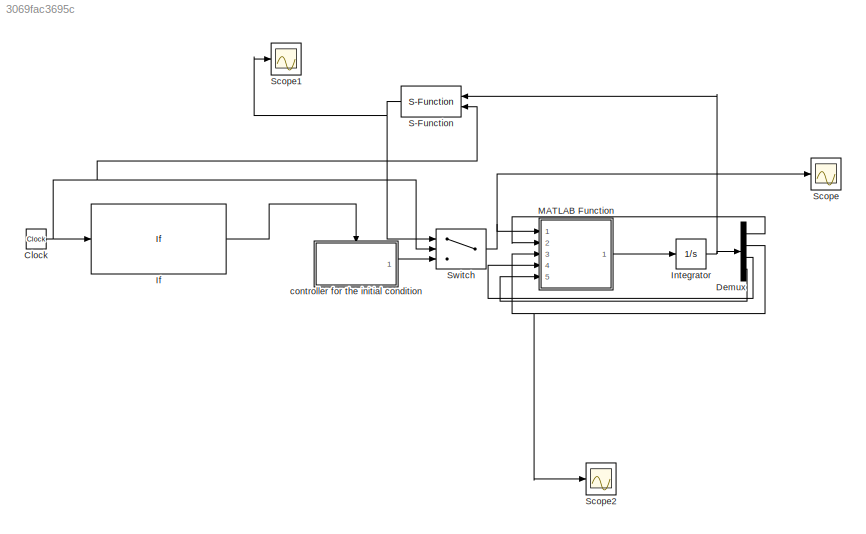
MODEL slx_3069fac3695c
KIND model
CONFIG AbsTol = auto
CONFIG EnableMultiTasking = off
CONFIG FixedStep = 0.01
CONFIG MaxStep = auto
CONFIG MinStep = auto
CONFIG RelTol = 1e-3
CONFIG SampleTimeConstraint = Unconstrained
CONFIG Solver = FixedStepAuto
CONFIG SolverName = FixedStepAuto
CONFIG StartTime = 0.0
CONFIG StopTime = 10
BLOCK [Clock] Clock
  Decimation = 1
BLOCK [Demux] Demux
  Ports = [1, 4]
BLOCK [If] If
  ElseIfExpressions = u1 >= 1 & u1 <2
  IfExpression = u1 < 1
  Ports = [1, 3]
BLOCK [Integrator] Integrator
  Ports = [1, 1]
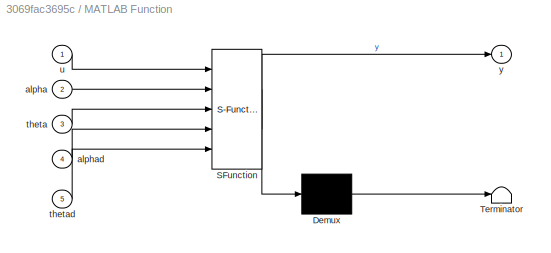
BLOCK [SubSystem] MATLAB Function
  ErrorFcn = Stateflow.Translate.translate
  PermitHierarchicalResolution = ExplicitOnly
  Ports = [5, 1]
  RequestExecContextInheritance = off
  SFBlockType = MATLAB Function
  TreatAsAtomicUnit = on
BLOCK [Demux] MATLAB Function/ Demux 
  Outputs = 1
  Ports = [1, 1]
BLOCK [S-Function] MATLAB Function/ SFunction 
  EnableBusSupport = on
  FunctionName = sf_sfun
  PortCounts = [5 2]
  Ports = [5, 2]
  SFcnIsStateOwnerBlock = off
  SFunctionDeploymentMode = off
  Tag = Stateflow S-Function 2
BLOCK [Terminator] MATLAB Function/ Terminator 
BLOCK [Inport] MATLAB Function/alpha
  Port = 2
BLOCK [Inport] MATLAB Function/alphad
  Port = 4
BLOCK [Inport] MATLAB Function/theta
  Port = 3
BLOCK [Inport] MATLAB Function/thetad
  Port = 5
BLOCK [Inport] MATLAB Function/u
BLOCK [Outport] MATLAB Function/y
BLOCK [S-Function] S-Function
  EnableBusSupport = off
  FunctionName = olcsC
  Ports = [2, 1]
  SFcnIsStateOwnerBlock = off
  SFunctionDeploymentMode = off
BLOCK [Scope] Scope
  Floating = off
  NumInputPorts = 1
  Ports = [1]
  ScopeSpecificationString = Simulink.scopes.TimeScopeBlockCfg('CurrentConfiguration', extmgr.ConfigurationSet(extmgr.Configuration('Core','General UI',true),extmgr.Configuration('Core','Source UI',true),extmgr.Configuration('Sources','WiredSimulink',true),extmgr.Configuration('Visuals','Time Domain',true,'SerializedDisplays',{struct('MinYLimReal','-1.67203','MaxYLimReal','1.29689','YLabelReal','','MinYLimMag','0.00000','MaxY...<+1366ch>
BLOCK [Scope] Scope1
  Floating = off
  NumInputPorts = 1
  Ports = [1]
  ScopeSpecificationString = Simulink.scopes.TimeScopeBlockCfg('CurrentConfiguration', extmgr.ConfigurationSet(extmgr.Configuration('Core','General UI',true),extmgr.Configuration('Core','Source UI',true),extmgr.Configuration('Sources','WiredSimulink',true,'DataLoggingVariableName','ScopeData1'),extmgr.Configuration('Visuals','Time Domain',true,'SerializedDisplays',{struct('MinYLimReal','-1.36269','MaxYLimReal','0.60014','YLab...<+1409ch>
BLOCK [Scope] Scope2
  Floating = off
  NumInputPorts = 1
  Ports = [1]
  ScopeSpecificationString = Simulink.scopes.TimeScopeBlockCfg('CurrentConfiguration', extmgr.ConfigurationSet(extmgr.Configuration('Core','General UI',true),extmgr.Configuration('Core','Source UI',true),extmgr.Configuration('Sources','WiredSimulink',true,'DataLoggingVariableName','ScopeData1'),extmgr.Configuration('Visuals','Time Domain',true,'SerializedDisplays',{struct('MinYLimReal','-0.6102','MaxYLimReal','0.63977','YLabe...<+1433ch>
BLOCK [Switch] Switch
  Criteria = u2 > Threshold
  InputSameDT = off
  SaturateOnIntegerOverflow = off
  Threshold = 2
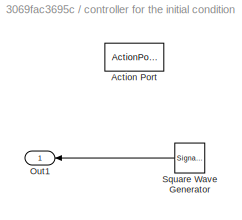
BLOCK [SubSystem] controller for the initial condition
  Ports = [0, 1, 0, 0, 0, 0, 0, 1]
  RequestExecContextInheritance = off
  TreatAsAtomicUnit = on
BLOCK [ActionPort] controller for the initial condition/Action Port
  ActionPortLabel = elseif(u1 >= 1 & u1 <2)
BLOCK [Outport] controller for the initial condition/Out1
BLOCK [SignalGenerator] controller for the initial condition/Square Wave Generator
  Ports = [0, 1]
  WaveForm = square
NET Clock:1 -> If:1, S-Function:2, Switch:2
LINE Demux:1 -> MATLAB Function:2
NET Demux:2 -> MATLAB Function:3, Scope2:1
LINE Demux:3 -> MATLAB Function:4
LINE Demux:4 -> MATLAB Function:5
LINE If:2 -> controller for the initial condition:ifaction
NET Integrator:1 -> Demux:1, S-Function:1
LINE MATLAB Function:1 -> Integrator:1
NET S-Function:1 -> Scope1:1, Switch:1
NET Switch:1 -> MATLAB Function:1, Scope:1
LINE controller for the initial condition/Square Wave Generator:1 -> controller for the initial condition/Out1:1
LINE controller for the initial condition:1 -> Switch:3
note: NET lines group one-source signal fan-out (src -> all destinations, sorted); 1:1 wires keep LINE
CHART MATLAB Function states=1 transitions=1
  STATE_LABEL 'eML_blk_kernel()'
  STATE_LABEL 'SCRIPT:\nfunction y = fcn(u,alpha,theta,alphad,thetad)\n \n    m = 0.114;\n    J = 0.0076;\n    l = 0.337;\n    r = 0.216;\n    g = 9.81;\n    K1 = 0.2065;\n    K2 = 0.1105;\n\n\n    alpha_dot = alphad;\n    theta_dot = thetad;\n\n    tau = K1*u - K2*alpha_dot;\n\n    denom = J + m*r^2 + m*l^2*sin(theta)^2-m*r^2*cos(theta)^2;\n    alpha_ddot = (tau-m*r*l*cos(theta)*(alphad^2*sin(theta)*cos(theta)-g*sin(theta)/l)+m*...<+446ch>'
CHART  states=0 transitions=0
